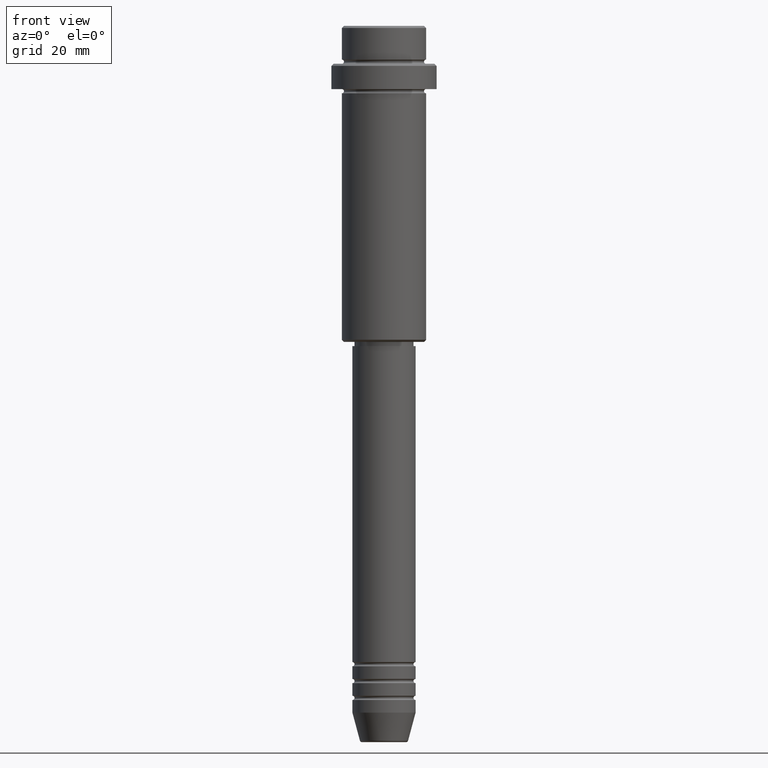
[diagram: clean part render]
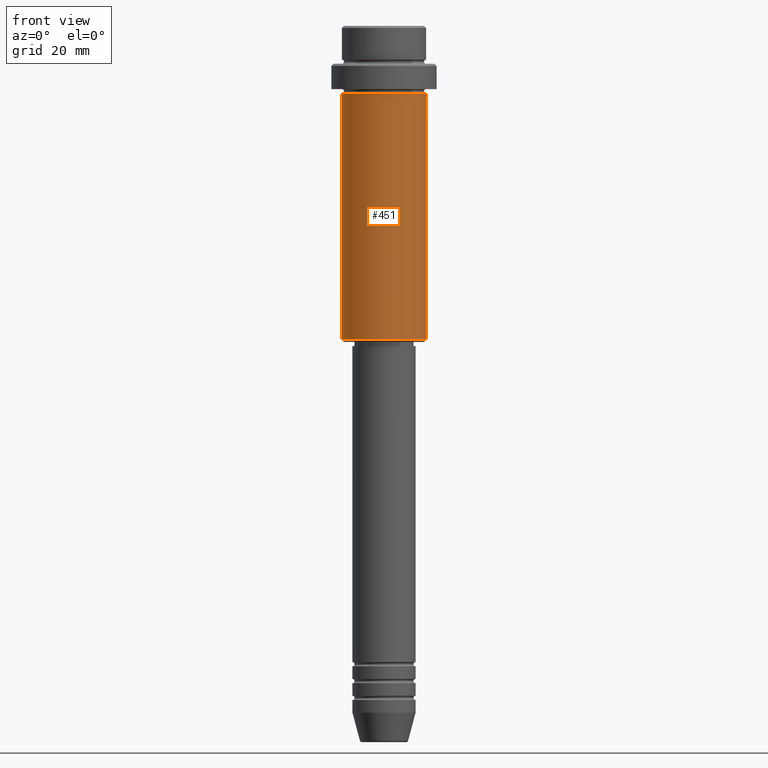
[diagram: same view with one face highlighted and labeled with its STEP entity id]
A machine part, front view. The second image highlights one B-rep face of the part: STEP entity #451.
In plain terms, the highlighted cylindrical surface (partial cylindrical patch) has radius 10 mm, axis along (-0, -0, 1).
Its self-contained STEP definition (entity closure, byte-faithful):
#12 = CIRCLE ( 'NONE', #848, 9.999999999999998224 ) ;
#139 = CARTESIAN_POINT ( 'NONE',  ( -9.999999999999998224, 1.224646799147353059E-15, 0.000000000000000000 ) ) ;
#194 = CARTESIAN_POINT ( 'NONE',  ( 9.999999999999998224, 0.000000000000000000, -74.50000000000000000 ) ) ;
#195 = CARTESIAN_POINT ( 'NONE',  ( -9.999999999999998224, 1.224646799147353059E-15, -16.00000000000000000 ) ) ;
#199 = ORIENTED_EDGE ( 'NONE', *, *, #296, .T. ) ;
#217 = DIRECTION ( 'NONE',  ( -0.000000000000000000, -0.000000000000000000, 1.000000000000000000 ) ) ;
#249 = LINE ( 'NONE', #139, #775 ) ;
#296 = EDGE_CURVE ( 'NONE', #491, #1188, #298, .T. ) ;
#298 = CIRCLE ( 'NONE', #381, 9.999999999999998224 ) ;
#302 = CARTESIAN_POINT ( 'NONE',  ( 9.999999999999998224, 0.000000000000000000, 0.000000000000000000 ) ) ;
#334 = DIRECTION ( 'NONE',  ( -1.000000000000000000, 0.000000000000000000, 0.000000000000000000 ) ) ;
#335 = DIRECTION ( 'NONE',  ( 1.000000000000000000, 0.000000000000000000, 0.000000000000000000 ) ) ;
#337 = CARTESIAN_POINT ( 'NONE',  ( -9.999999999999998224, 1.224646799147353059E-15, -74.50000000000000000 ) ) ;
#381 = AXIS2_PLACEMENT_3D ( 'NONE', #670, #1325, #334 ) ;
#402 = ORIENTED_EDGE ( 'NONE', *, *, #1144, .T. ) ;
#439 = DIRECTION ( 'NONE',  ( -0.000000000000000000, -0.000000000000000000, 1.000000000000000000 ) ) ;
#451 = ADVANCED_FACE ( 'NONE', ( #1016 ), #1000, .T. ) ;
#455 = DIRECTION ( 'NONE',  ( 1.000000000000000000, 0.000000000000000000, 0.000000000000000000 ) ) ;
#469 = ORIENTED_EDGE ( 'NONE', *, *, #1274, .F. ) ;
#491 = VERTEX_POINT ( 'NONE', #337 ) ;
#616 = LINE ( 'NONE', #302, #847 ) ;
#670 = CARTESIAN_POINT ( 'NONE',  ( 0.000000000000000000, 0.000000000000000000, -74.50000000000000000 ) ) ;
#696 = VERTEX_POINT ( 'NONE', #195 ) ;
#775 = VECTOR ( 'NONE', #1026, 1000.000000000000000 ) ;
#847 = VECTOR ( 'NONE', #1388, 1000.000000000000000 ) ;
#848 = AXIS2_PLACEMENT_3D ( 'NONE', #1308, #439, #335 ) ;
#968 = EDGE_LOOP ( 'NONE', ( #1365, #199, #402, #469 ) ) ;
#973 = CARTESIAN_POINT ( 'NONE',  ( 9.999999999999998224, 0.000000000000000000, -16.00000000000000000 ) ) ;
#988 = CARTESIAN_POINT ( 'NONE',  ( 0.000000000000000000, 0.000000000000000000, 0.000000000000000000 ) ) ;
#1000 = CYLINDRICAL_SURFACE ( 'NONE', #1132, 9.999999999999998224 ) ;
#1014 = EDGE_CURVE ( 'NONE', #491, #696, #249, .T. ) ;
#1016 = FACE_OUTER_BOUND ( 'NONE', #968, .T. ) ;
#1026 = DIRECTION ( 'NONE',  ( -0.000000000000000000, -0.000000000000000000, 1.000000000000000000 ) ) ;
#1132 = AXIS2_PLACEMENT_3D ( 'NONE', #988, #217, #455 ) ;
#1144 = EDGE_CURVE ( 'NONE', #1188, #1277, #616, .T. ) ;
#1188 = VERTEX_POINT ( 'NONE', #194 ) ;
#1274 = EDGE_CURVE ( 'NONE', #696, #1277, #12, .T. ) ;
#1277 = VERTEX_POINT ( 'NONE', #973 ) ;
#1308 = CARTESIAN_POINT ( 'NONE',  ( 0.000000000000000000, 0.000000000000000000, -16.00000000000000000 ) ) ;
#1325 = DIRECTION ( 'NONE',  ( -0.000000000000000000, -0.000000000000000000, 1.000000000000000000 ) ) ;
#1365 = ORIENTED_EDGE ( 'NONE', *, *, #1014, .F. ) ;
#1388 = DIRECTION ( 'NONE',  ( -0.000000000000000000, -0.000000000000000000, 1.000000000000000000 ) ) ;